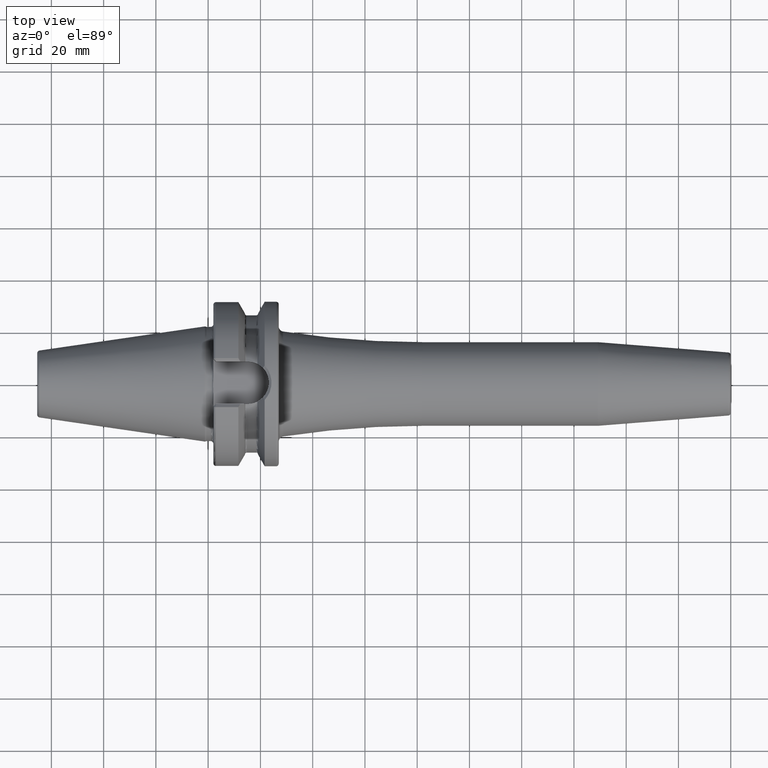
[diagram: clean part render]
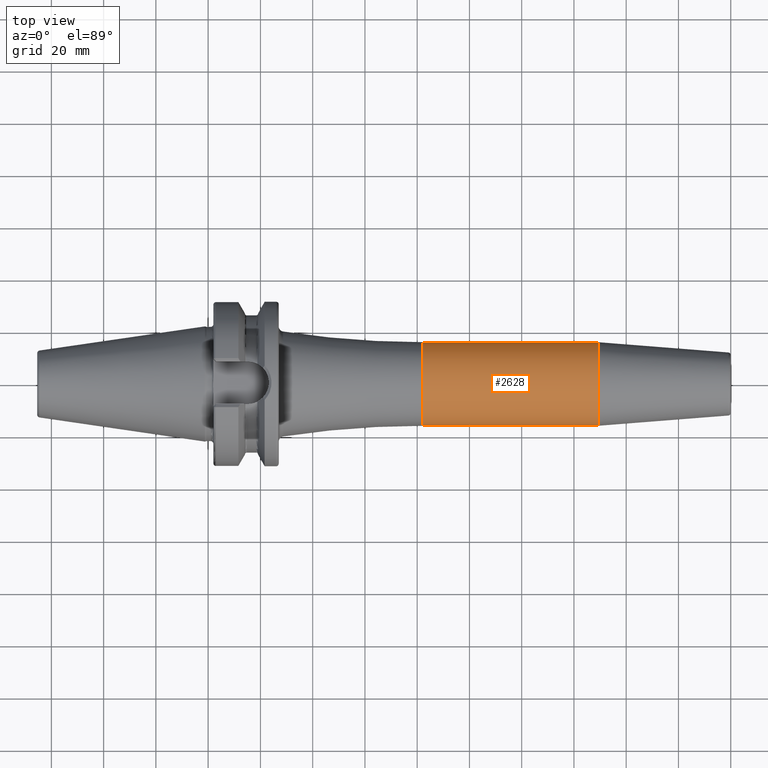
[diagram: same view with one face highlighted and labeled with its STEP entity id]
A machine part, top view. The second image highlights one B-rep face of the part: STEP entity #2628.
In plain terms, the highlighted cylindrical surface (partial cylindrical patch) has radius 16 mm, axis along (1, 0, 0).
Its self-contained STEP definition (entity closure, byte-faithful):
#881=DIRECTION('',(-1.E0,0.E0,0.E0));
#882=VECTOR('',#881,6.717518105530E1);
#883=CARTESIAN_POINT('',(1.491751810553E2,-1.6E1,0.E0));
#884=LINE('',#883,#882);
#890=DIRECTION('',(-1.E0,0.E0,0.E0));
#891=VECTOR('',#890,6.717518105530E1);
#892=CARTESIAN_POINT('',(1.491751810553E2,1.6E1,0.E0));
#893=LINE('',#892,#891);
#894=CARTESIAN_POINT('',(8.2E1,0.E0,0.E0));
#895=DIRECTION('',(1.E0,0.E0,0.E0));
#896=DIRECTION('',(0.E0,1.E0,0.E0));
#897=AXIS2_PLACEMENT_3D('',#894,#895,#896);
#899=CARTESIAN_POINT('',(1.491751810553E2,0.E0,0.E0));
#900=DIRECTION('',(1.E0,0.E0,0.E0));
#901=DIRECTION('',(0.E0,1.E0,0.E0));
#902=AXIS2_PLACEMENT_3D('',#899,#900,#901);
#1421=CARTESIAN_POINT('',(1.491751810553E2,1.6E1,0.E0));
#1422=CARTESIAN_POINT('',(1.491751810553E2,-1.6E1,0.E0));
#1423=VERTEX_POINT('',#1421);
#1424=VERTEX_POINT('',#1422);
#1433=CARTESIAN_POINT('',(8.2E1,1.6E1,0.E0));
#1434=CARTESIAN_POINT('',(8.2E1,-1.6E1,0.E0));
#1435=VERTEX_POINT('',#1433);
#1436=VERTEX_POINT('',#1434);
#2616=CARTESIAN_POINT('',(1.835E1,0.E0,0.E0));
#2617=DIRECTION('',(1.E0,0.E0,0.E0));
#2618=DIRECTION('',(0.E0,-1.E0,0.E0));
#2619=AXIS2_PLACEMENT_3D('',#2616,#2617,#2618);
#2620=CYLINDRICAL_SURFACE('',#2619,1.6E1);
#2621=ORIENTED_EDGE('',*,*,#2581,.F.);
#2622=ORIENTED_EDGE('',*,*,#2611,.F.);
#2624=ORIENTED_EDGE('',*,*,#2623,.T.);
#2625=ORIENTED_EDGE('',*,*,#2607,.T.);
#2626=EDGE_LOOP('',(#2621,#2622,#2624,#2625));
#2627=FACE_OUTER_BOUND('',#2626,.F.);
#2628=ADVANCED_FACE('',(#2627),#2620,.T.);
#898=CIRCLE('',#897,1.6E1);
#903=CIRCLE('',#902,1.6E1);
#2581=EDGE_CURVE('',#1435,#1436,#898,.T.);
#2607=EDGE_CURVE('',#1424,#1436,#884,.T.);
#2611=EDGE_CURVE('',#1423,#1435,#893,.T.);
#2623=EDGE_CURVE('',#1423,#1424,#903,.T.);